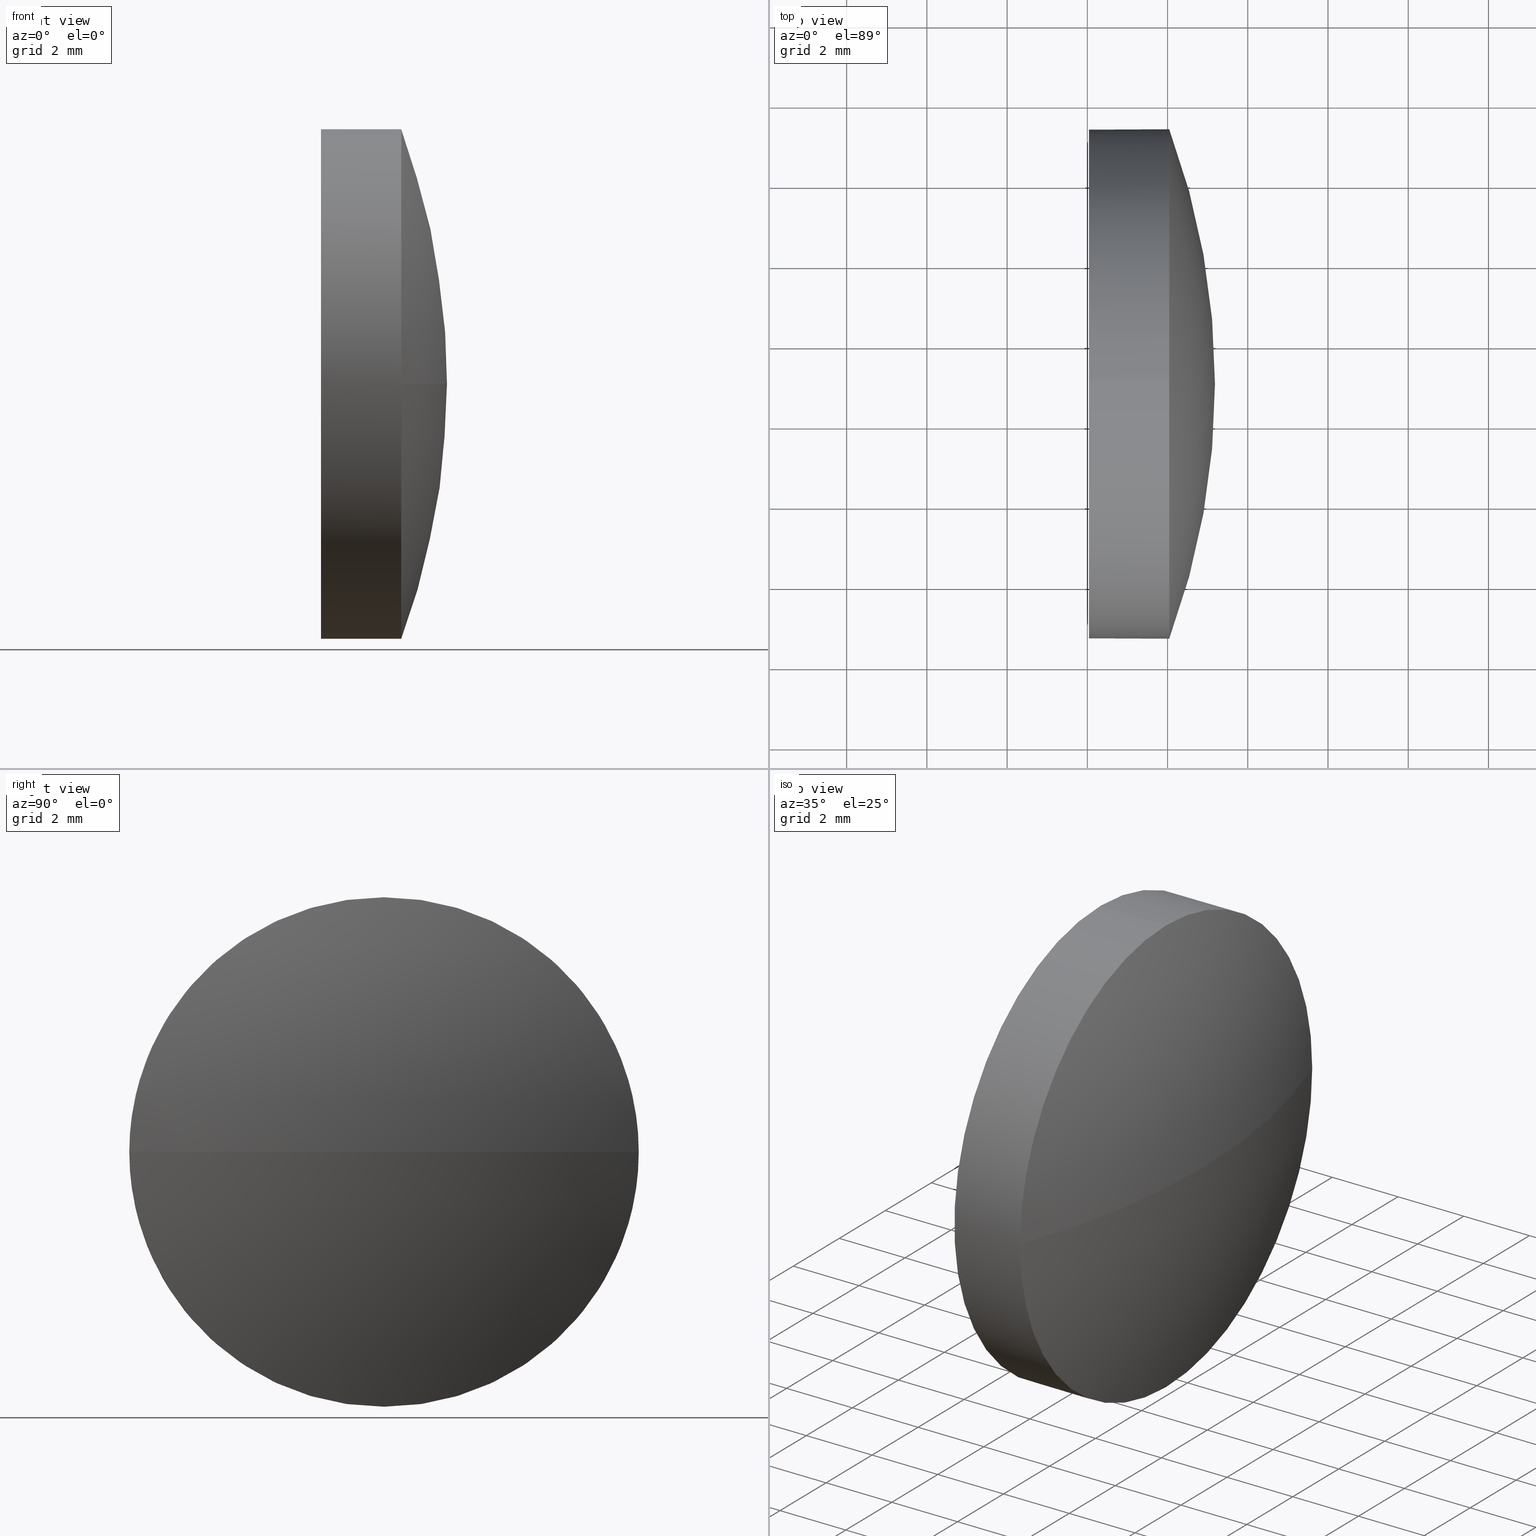
[diagram: canonical four-view strip — front | top / right | iso, engineering-drawing reading convention]
A machine part, canonical four-view strip (front | top / right | iso — engineering-drawing reading convention). The complete STEP part file that produces these views, byte-faithful:
ISO-10303-21;
HEADER;
FILE_DESCRIPTION (( 'STEP AP214' ),
    '1' );
FILE_NAME ('100366.STEP',
    '2019-06-04T02:27:05',
    ( '' ),
    ( '' ),
    'SwSTEP 2.0',
    'SolidWorks 2016',
    '' );
FILE_SCHEMA (( 'AUTOMOTIVE_DESIGN' ));
ENDSEC;

DATA;
#1 = EDGE_CURVE ( 'NONE', #84, #67, #161, .T. ) ;
#2 = CIRCLE ( 'NONE', #55, 6.350000000000000500 ) ;
#3 = CARTESIAN_POINT ( 'NONE',  ( 449.7142539148659900, -0.9922208549258472200, 0.0000000000000000000 ) ) ;
#4 = ADVANCED_FACE ( 'NONE', ( #51 ), #126, .T. ) ;
#5 = CARTESIAN_POINT ( 'NONE',  ( 452.0422824048600900, -0.9922208549258472200, 0.0000000000000000000 ) ) ;
#6 = CARTESIAN_POINT ( 'NONE',  ( 454.0422824048600900, -0.9922208549258472200, 0.0000000000000000000 ) ) ;
#7 = APPLICATION_CONTEXT ( 'automotive_design' ) ;
#8 = SURFACE_STYLE_USAGE ( .BOTH. , #116 ) ;
#9 = COLOUR_RGB ( '',1.000000000000000000, 1.000000000000000000, 1.000000000000000000 ) ;
#10 = AXIS2_PLACEMENT_3D ( 'NONE', #5, #139, #28 ) ;
#11 = APPLICATION_CONTEXT ( 'automotive_design' ) ;
#12 = EDGE_LOOP ( 'NONE', ( #72, #87, #154, #21 ) ) ;
#13 = CIRCLE ( 'NONE', #66, 6.350000000000000500 ) ;
#14 = APPLICATION_PROTOCOL_DEFINITION ( 'draft international standard', 'automotive_design', 1998, #11 ) ;
#15 = COLOUR_RGB ( '',1.000000000000000000, 1.000000000000000000, 1.000000000000000000 ) ;
#16 = SPHERICAL_SURFACE ( 'NONE', #120, 18.25530701754391700 ) ;
#17 = PRODUCT_DEFINITION_FORMATION_WITH_SPECIFIED_SOURCE ( '�κ�', '', #159, .NOT_KNOWN. ) ;
#18 = ORIENTED_EDGE ( 'NONE', *, *, #145, .T. ) ;
#19 = PRODUCT_DEFINITION_SHAPE ( 'NONE', 'NONE',  #85 ) ;
#20 = CARTESIAN_POINT ( 'NONE',  ( 436.9269753873161900, -0.9922208549258261200, 0.0000000000000000000 ) ) ;
#21 = ORIENTED_EDGE ( 'NONE', *, *, #86, .F. ) ;
#22 = DIRECTION ( 'NONE',  ( 0.0000000000000000000, 0.0000000000000000000, 1.000000000000000000 ) ) ;
#23 = AXIS2_PLACEMENT_3D ( 'NONE', #127, #156, #76 ) ;
#24 = FILL_AREA_STYLE ('',( #38 ) ) ;
#25 = ORIENTED_EDGE ( 'NONE', *, *, #103, .T. ) ;
#26 = ADVANCED_FACE ( 'NONE', ( #53 ), #16, .T. ) ;
#27 =( NAMED_UNIT ( * ) PLANE_ANGLE_UNIT ( ) SI_UNIT ( $, .RADIAN. ) );
#28 = DIRECTION ( 'NONE',  ( 0.0000000000000000000, 0.0000000000000000000, 1.000000000000000000 ) ) ;
#29 = DIRECTION ( 'NONE',  ( -1.000000000000000000, -0.0000000000000000000, -0.0000000000000000000 ) ) ;
#30 = CARTESIAN_POINT ( 'NONE',  ( 455.1822824048600800, -0.9922208549258272300, 0.0000000000000000000 ) ) ;
#31 = CIRCLE ( 'NONE', #10, 6.350000000000000500 ) ;
#32 = MANIFOLD_SOLID_BREP ( '��ת1', #185 ) ;
#33 = PRODUCT_DEFINITION_CONTEXT ( 'detailed design', #11, 'design' ) ;
#34 = AXIS2_PLACEMENT_3D ( 'NONE', #170, #29, #94 ) ;
#35 = ORIENTED_EDGE ( 'NONE', *, *, #96, .T. ) ;
#36 = CARTESIAN_POINT ( 'NONE',  ( 436.9269753873161900, -0.9922208549258261200, 0.0000000000000000000 ) ) ;
#37 = STYLED_ITEM ( 'NONE', ( #131 ), #32 ) ;
#38 = FILL_AREA_STYLE_COLOUR ( '', #9 ) ;
#39 = ADVANCED_FACE ( 'NONE', ( #157 ), #133, .T. ) ;
#40 = VERTEX_POINT ( 'NONE', #109 ) ;
#41 = CARTESIAN_POINT ( 'NONE',  ( 436.9269753873161900, -0.9922208549258261200, 0.0000000000000000000 ) ) ;
#42 = CARTESIAN_POINT ( 'NONE',  ( 454.0422824048600900, -0.9922208549258472200, 6.350000000000000500 ) ) ;
#43 = ORIENTED_EDGE ( 'NONE', *, *, #69, .F. ) ;
#44 = FILL_AREA_STYLE_COLOUR ( '', #15 ) ;
#45 = DIRECTION ( 'NONE',  ( -1.000000000000000000, -0.0000000000000000000, -0.0000000000000000000 ) ) ;
#46 = CIRCLE ( 'NONE', #23, 6.350000000000000500 ) ;
#47 = AXIS2_PLACEMENT_3D ( 'NONE', #129, #132, #167 ) ;
#48 = ORIENTED_EDGE ( 'NONE', *, *, #149, .T. ) ;
#49 = PRESENTATION_LAYER_ASSIGNMENT (  '', '', ( #37 ) ) ;
#50 = VECTOR ( 'NONE', #150, 1000.000000000000000 ) ;
#51 = FACE_OUTER_BOUND ( 'NONE', #12, .T. ) ;
#52 = CIRCLE ( 'NONE', #47, 18.25530701754391000 ) ;
#53 = FACE_OUTER_BOUND ( 'NONE', #123, .T. ) ;
#54 = DIRECTION ( 'NONE',  ( 0.0000000000000000000, 0.0000000000000000000, -1.000000000000000000 ) ) ;
#55 = AXIS2_PLACEMENT_3D ( 'NONE', #153, #111, #140 ) ;
#56 = ORIENTED_EDGE ( 'NONE', *, *, #86, .T. ) ;
#57 = CYLINDRICAL_SURFACE ( 'NONE', #62, 6.350000000000000500 ) ;
#58 = DIRECTION ( 'NONE',  ( 0.0000000000000000000, 0.0000000000000000000, 1.000000000000000000 ) ) ;
#59 =( GEOMETRIC_REPRESENTATION_CONTEXT ( 3 ) GLOBAL_UNCERTAINTY_ASSIGNED_CONTEXT ( ( #162 ) ) GLOBAL_UNIT_ASSIGNED_CONTEXT ( ( #174, #124, #136 ) ) REPRESENTATION_CONTEXT ( 'NONE', 'WORKASPACE' ) );
#60 = FACE_OUTER_BOUND ( 'NONE', #73, .T. ) ;
#61 = EDGE_LOOP ( 'NONE', ( #35, #113, #168, #128, #98 ) ) ;
#62 = AXIS2_PLACEMENT_3D ( 'NONE', #80, #183, #58 ) ;
#63 = EDGE_LOOP ( 'NONE', ( #43, #18, #56, #25, #78 ) ) ;
#64 = ADVANCED_FACE ( 'NONE', ( #60 ), #151, .F. ) ;
#65 = VECTOR ( 'NONE', #143, 1000.000000000000000 ) ;
#66 = AXIS2_PLACEMENT_3D ( 'NONE', #155, #45, #112 ) ;
#67 = VERTEX_POINT ( 'NONE', #93 ) ;
#68 = DIRECTION ( 'NONE',  ( -1.000000000000000000, -0.0000000000000000000, -0.0000000000000000000 ) ) ;
#69 = EDGE_CURVE ( 'NONE', #171, #40, #88, .T. ) ;
#70 =( LENGTH_UNIT ( ) NAMED_UNIT ( * ) SI_UNIT ( .MILLI., .METRE. ) );
#71 = ORIENTED_EDGE ( 'NONE', *, *, #1, .F. ) ;
#72 = ORIENTED_EDGE ( 'NONE', *, *, #149, .F. ) ;
#73 = EDGE_LOOP ( 'NONE', ( #105, #148 ) ) ;
#74 = SURFACE_STYLE_USAGE ( .BOTH. , #175 ) ;
#75 = DIRECTION ( 'NONE',  ( 0.0000000000000000000, -1.224646799147353200E-016, 1.000000000000000000 ) ) ;
#76 = DIRECTION ( 'NONE',  ( 0.0000000000000000000, 0.0000000000000000000, 1.000000000000000000 ) ) ;
#77 = UNCERTAINTY_MEASURE_WITH_UNIT (LENGTH_MEASURE( 1.000000000000000100E-005 ), #180, 'distance_accuracy_value', 'NONE');
#78 = ORIENTED_EDGE ( 'NONE', *, *, #125, .F. ) ;
#79 = CARTESIAN_POINT ( 'NONE',  ( 0.0000000000000000000, 0.0000000000000000000, 0.0000000000000000000 ) ) ;
#80 = CARTESIAN_POINT ( 'NONE',  ( 449.7142539148659900, -0.9922208549258472200, 0.0000000000000000000 ) ) ;
#81 = SURFACE_STYLE_FILL_AREA ( #24 ) ;
#82 = LINE ( 'NONE', #166, #50 ) ;
#83 = PRESENTATION_STYLE_ASSIGNMENT (( #8 ) ) ;
#84 = VERTEX_POINT ( 'NONE', #30 ) ;
#85 = PRODUCT_DEFINITION ( 'δ֪', '', #17, #33 ) ;
#86 = EDGE_CURVE ( 'NONE', #137, #160, #114, .T. ) ;
#87 = ORIENTED_EDGE ( 'NONE', *, *, #1, .T. ) ;
#88 = LINE ( 'NONE', #165, #65 ) ;
#89 = DIRECTION ( 'NONE',  ( 1.000000000000000000, 0.0000000000000000000, 0.0000000000000000000 ) ) ;
#90 = CARTESIAN_POINT ( 'NONE',  ( 452.0422824048600900, -0.9922208549258472200, 0.0000000000000000000 ) ) ;
#91 = MECHANICAL_DESIGN_GEOMETRIC_PRESENTATION_REPRESENTATION (  '', ( #37 ), #59 ) ;
#92 = DIRECTION ( 'NONE',  ( 0.0000000000000000000, -1.000000000000000000, 0.0000000000000000000 ) ) ;
#93 = CARTESIAN_POINT ( 'NONE',  ( 454.0422824048600900, 5.357779145074143700, 7.776507174585654700E-016 ) ) ;
#94 = DIRECTION ( 'NONE',  ( 0.0000000000000000000, 0.0000000000000000000, 1.000000000000000000 ) ) ;
#95 = DIRECTION ( 'NONE',  ( 0.0000000000000000000, 0.0000000000000000000, 1.000000000000000000 ) ) ;
#96 = EDGE_CURVE ( 'NONE', #67, #171, #13, .T. ) ;
#97 =( NAMED_UNIT ( * ) SI_UNIT ( $, .STERADIAN. ) SOLID_ANGLE_UNIT ( ) );
#98 = ORIENTED_EDGE ( 'NONE', *, *, #130, .T. ) ;
#99 =( GEOMETRIC_REPRESENTATION_CONTEXT ( 3 ) GLOBAL_UNCERTAINTY_ASSIGNED_CONTEXT ( ( #77 ) ) GLOBAL_UNIT_ASSIGNED_CONTEXT ( ( #180, #182, #97 ) ) REPRESENTATION_CONTEXT ( 'NONE', 'WORKASPACE' ) );
#100 =( NAMED_UNIT ( * ) SI_UNIT ( $, .STERADIAN. ) SOLID_ANGLE_UNIT ( ) );
#101 = ADVANCED_BREP_SHAPE_REPRESENTATION ( '100366', ( #32, #181 ), #99 ) ;
#102 = MECHANICAL_DESIGN_GEOMETRIC_PRESENTATION_REPRESENTATION (  '', ( #146 ), #121 ) ;
#103 = EDGE_CURVE ( 'NONE', #160, #178, #82, .T. ) ;
#104 = AXIS2_PLACEMENT_3D ( 'NONE', #41, #75, #177 ) ;
#105 = ORIENTED_EDGE ( 'NONE', *, *, #164, .T. ) ;
#106 = DIRECTION ( 'NONE',  ( -1.000000000000000000, -0.0000000000000000000, -0.0000000000000000000 ) ) ;
#107 = DIRECTION ( 'NONE',  ( 0.0000000000000000000, 0.0000000000000000000, 1.000000000000000000 ) ) ;
#108 = DIRECTION ( 'NONE',  ( 0.0000000000000000000, 0.0000000000000000000, 1.000000000000000000 ) ) ;
#109 = CARTESIAN_POINT ( 'NONE',  ( 452.0422824048600900, -0.9922208549258463300, -6.350000000000000500 ) ) ;
#110 = UNCERTAINTY_MEASURE_WITH_UNIT (LENGTH_MEASURE( 1.000000000000000100E-005 ), #70, 'distance_accuracy_value', 'NONE');
#111 = DIRECTION ( 'NONE',  ( -1.000000000000000000, -0.0000000000000000000, -0.0000000000000000000 ) ) ;
#112 = DIRECTION ( 'NONE',  ( 0.0000000000000000000, 0.0000000000000000000, 1.000000000000000000 ) ) ;
#113 = ORIENTED_EDGE ( 'NONE', *, *, #69, .T. ) ;
#114 = CIRCLE ( 'NONE', #186, 6.350000000000000500 ) ;
#115 = PRODUCT_RELATED_PRODUCT_CATEGORY ( 'part', '', ( #159 ) ) ;
#116 = SURFACE_SIDE_STYLE ('',( #169 ) ) ;
#117 = AXIS2_PLACEMENT_3D ( 'NONE', #3, #106, #22 ) ;
#118 = DIRECTION ( 'NONE',  ( 0.0000000000000000000, 0.0000000000000000000, 1.000000000000000000 ) ) ;
#119 = ORIENTED_EDGE ( 'NONE', *, *, #96, .F. ) ;
#120 = AXIS2_PLACEMENT_3D ( 'NONE', #36, #107, #138 ) ;
#121 =( GEOMETRIC_REPRESENTATION_CONTEXT ( 3 ) GLOBAL_UNCERTAINTY_ASSIGNED_CONTEXT ( ( #110 ) ) GLOBAL_UNIT_ASSIGNED_CONTEXT ( ( #70, #27, #100 ) ) REPRESENTATION_CONTEXT ( 'NONE', 'WORKASPACE' ) );
#122 = FACE_OUTER_BOUND ( 'NONE', #61, .T. ) ;
#123 = EDGE_LOOP ( 'NONE', ( #71, #48, #134, #119 ) ) ;
#124 =( NAMED_UNIT ( * ) PLANE_ANGLE_UNIT ( ) SI_UNIT ( $, .RADIAN. ) );
#125 = EDGE_CURVE ( 'NONE', #40, #178, #31, .T. ) ;
#126 = SPHERICAL_SURFACE ( 'NONE', #135, 18.25530701754391700 ) ;
#127 = CARTESIAN_POINT ( 'NONE',  ( 454.0422824048600900, -0.9922208549258472200, 0.0000000000000000000 ) ) ;
#128 = ORIENTED_EDGE ( 'NONE', *, *, #103, .F. ) ;
#129 = CARTESIAN_POINT ( 'NONE',  ( 436.9269753873161900, -0.9922208549258261200, 0.0000000000000000000 ) ) ;
#130 = EDGE_CURVE ( 'NONE', #160, #67, #46, .T. ) ;
#131 = PRESENTATION_STYLE_ASSIGNMENT (( #74 ) ) ;
#132 = DIRECTION ( 'NONE',  ( 0.0000000000000000000, 0.0000000000000000000, -1.000000000000000000 ) ) ;
#133 = CYLINDRICAL_SURFACE ( 'NONE', #117, 6.350000000000000500 ) ;
#134 = ORIENTED_EDGE ( 'NONE', *, *, #145, .F. ) ;
#135 = AXIS2_PLACEMENT_3D ( 'NONE', #20, #108, #92 ) ;
#136 =( NAMED_UNIT ( * ) SI_UNIT ( $, .STERADIAN. ) SOLID_ANGLE_UNIT ( ) );
#137 = VERTEX_POINT ( 'NONE', #172 ) ;
#138 = DIRECTION ( 'NONE',  ( 0.0000000000000000000, -1.000000000000000000, 0.0000000000000000000 ) ) ;
#139 = DIRECTION ( 'NONE',  ( -1.000000000000000000, -0.0000000000000000000, -0.0000000000000000000 ) ) ;
#140 = DIRECTION ( 'NONE',  ( 0.0000000000000000000, 0.0000000000000000000, 1.000000000000000000 ) ) ;
#141 = CARTESIAN_POINT ( 'NONE',  ( 452.0422824048600900, -0.9922208549258472200, 6.350000000000000500 ) ) ;
#142 = CIRCLE ( 'NONE', #34, 6.350000000000000500 ) ;
#143 = DIRECTION ( 'NONE',  ( -1.000000000000000000, -0.0000000000000000000, -0.0000000000000000000 ) ) ;
#144 = CARTESIAN_POINT ( 'NONE',  ( 454.0422824048600900, -0.9922208549258463300, -6.350000000000000500 ) ) ;
#145 = EDGE_CURVE ( 'NONE', #171, #137, #142, .T. ) ;
#146 = STYLED_ITEM ( 'NONE', ( #83 ), #101 ) ;
#147 = PRESENTATION_LAYER_ASSIGNMENT (  '', '', ( #146 ) ) ;
#148 = ORIENTED_EDGE ( 'NONE', *, *, #125, .T. ) ;
#149 = EDGE_CURVE ( 'NONE', #84, #137, #52, .T. ) ;
#150 = DIRECTION ( 'NONE',  ( -1.000000000000000000, -0.0000000000000000000, -0.0000000000000000000 ) ) ;
#151 = PLANE ( 'NONE',  #176 ) ;
#152 = FILL_AREA_STYLE ('',( #44 ) ) ;
#153 = CARTESIAN_POINT ( 'NONE',  ( 452.0422824048600900, -0.9922208549258472200, 0.0000000000000000000 ) ) ;
#154 = ORIENTED_EDGE ( 'NONE', *, *, #130, .F. ) ;
#155 = CARTESIAN_POINT ( 'NONE',  ( 454.0422824048600900, -0.9922208549258472200, 0.0000000000000000000 ) ) ;
#156 = DIRECTION ( 'NONE',  ( -1.000000000000000000, -0.0000000000000000000, -0.0000000000000000000 ) ) ;
#157 = FACE_OUTER_BOUND ( 'NONE', #63, .T. ) ;
#158 = DIRECTION ( 'NONE',  ( 1.000000000000000000, 0.0000000000000000000, 0.0000000000000000000 ) ) ;
#159 = PRODUCT ( '100366', '100366', '', ( #173 ) ) ;
#160 = VERTEX_POINT ( 'NONE', #42 ) ;
#161 = CIRCLE ( 'NONE', #104, 18.25530701754391700 ) ;
#162 = UNCERTAINTY_MEASURE_WITH_UNIT (LENGTH_MEASURE( 1.000000000000000100E-005 ), #174, 'distance_accuracy_value', 'NONE');
#163 = SHAPE_DEFINITION_REPRESENTATION ( #19, #101 ) ;
#164 = EDGE_CURVE ( 'NONE', #178, #40, #2, .T. ) ;
#165 = CARTESIAN_POINT ( 'NONE',  ( 449.7142539148659900, -0.9922208549258463300, -6.350000000000000500 ) ) ;
#166 = CARTESIAN_POINT ( 'NONE',  ( 449.7142539148659900, -0.9922208549258472200, 6.350000000000000500 ) ) ;
#167 = DIRECTION ( 'NONE',  ( -1.000000000000000000, 0.0000000000000000000, 0.0000000000000000000 ) ) ;
#168 = ORIENTED_EDGE ( 'NONE', *, *, #164, .F. ) ;
#169 = SURFACE_STYLE_FILL_AREA ( #152 ) ;
#170 = CARTESIAN_POINT ( 'NONE',  ( 454.0422824048600900, -0.9922208549258472200, 0.0000000000000000000 ) ) ;
#171 = VERTEX_POINT ( 'NONE', #144 ) ;
#172 = CARTESIAN_POINT ( 'NONE',  ( 454.0422824048600900, -7.342220854925817400, 0.0000000000000000000 ) ) ;
#173 = PRODUCT_CONTEXT ( 'NONE', #7, 'mechanical' ) ;
#174 =( LENGTH_UNIT ( ) NAMED_UNIT ( * ) SI_UNIT ( .MILLI., .METRE. ) );
#175 = SURFACE_SIDE_STYLE ('',( #81 ) ) ;
#176 = AXIS2_PLACEMENT_3D ( 'NONE', #90, #89, #54 ) ;
#177 = DIRECTION ( 'NONE',  ( 0.0000000000000000000, -1.000000000000000000, -1.224646799147353200E-016 ) ) ;
#178 = VERTEX_POINT ( 'NONE', #141 ) ;
#179 = ADVANCED_FACE ( 'NONE', ( #122 ), #57, .T. ) ;
#180 =( LENGTH_UNIT ( ) NAMED_UNIT ( * ) SI_UNIT ( .MILLI., .METRE. ) );
#181 = AXIS2_PLACEMENT_3D ( 'NONE', #79, #118, #158 ) ;
#182 =( NAMED_UNIT ( * ) PLANE_ANGLE_UNIT ( ) SI_UNIT ( $, .RADIAN. ) );
#183 = DIRECTION ( 'NONE',  ( -1.000000000000000000, -0.0000000000000000000, -0.0000000000000000000 ) ) ;
#184 = APPLICATION_PROTOCOL_DEFINITION ( 'draft international standard', 'automotive_design', 1998, #7 ) ;
#185 = CLOSED_SHELL ( 'NONE', ( #179, #4, #26, #39, #64 ) ) ;
#186 = AXIS2_PLACEMENT_3D ( 'NONE', #6, #68, #95 ) ;
ENDSEC;
END-ISO-10303-21;
